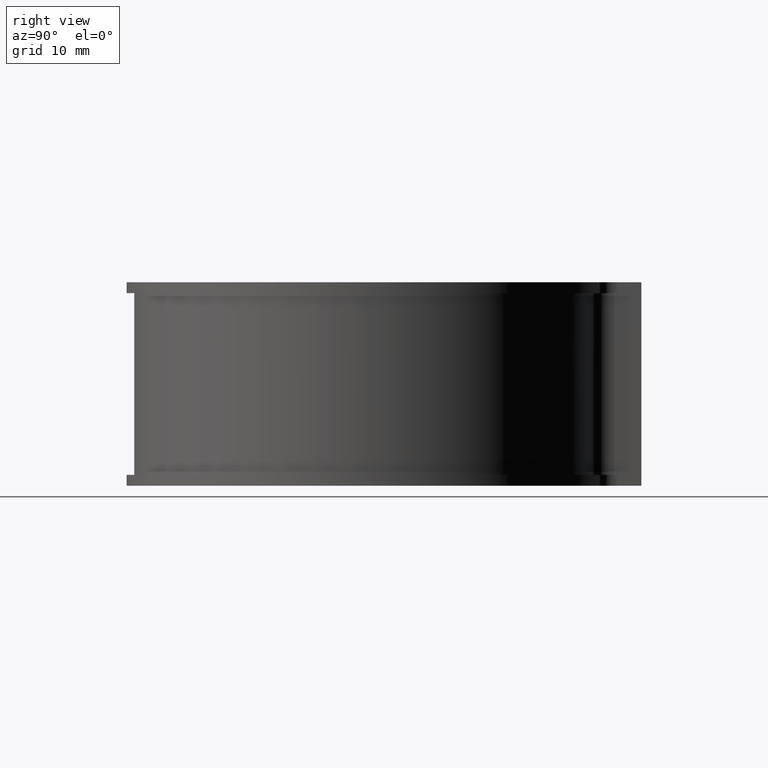
[diagram: clean part render]
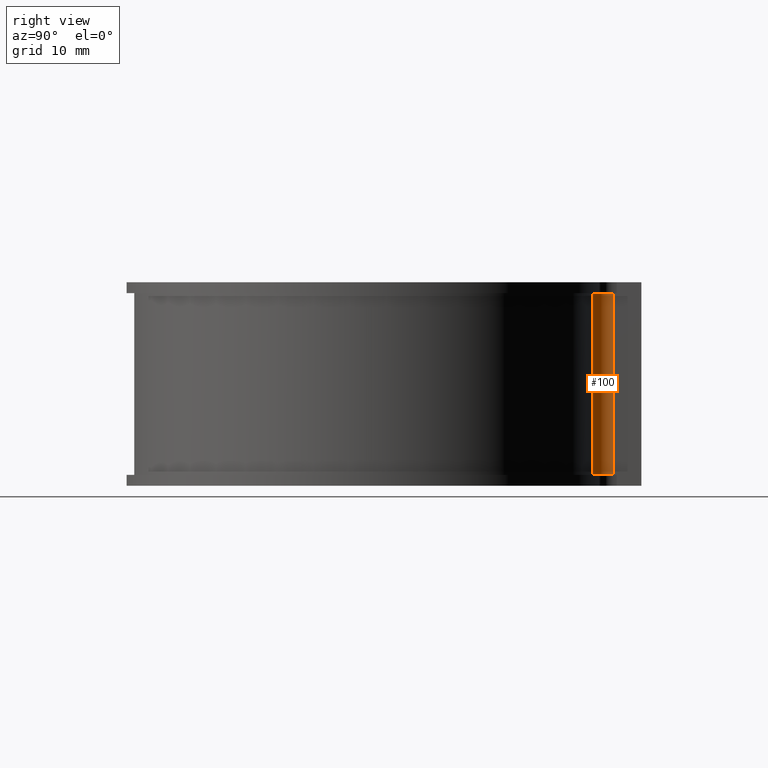
[diagram: same view with one face highlighted and labeled with its STEP entity id]
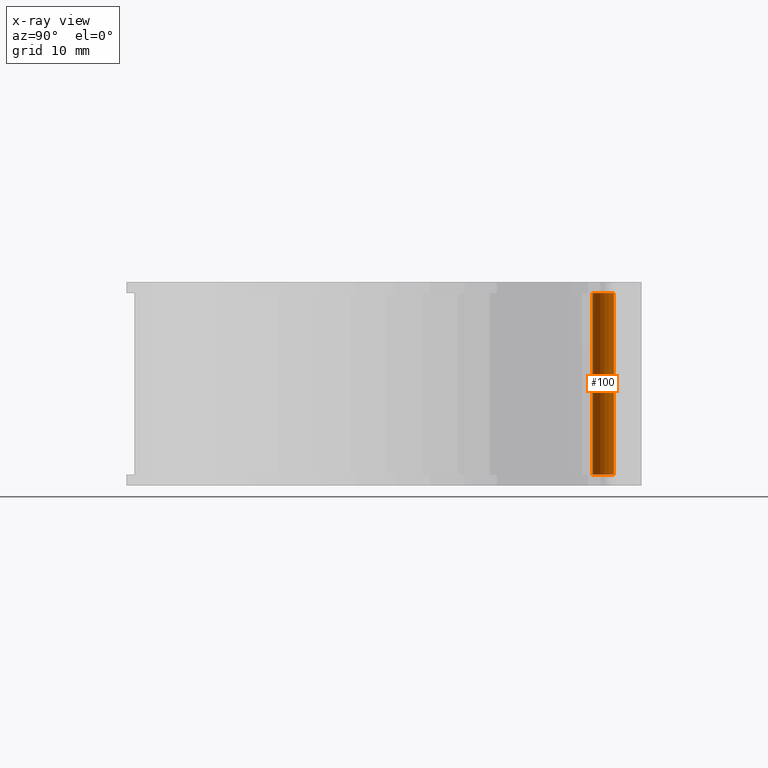
[diagram: x-ray of the same camera — body ghosted, the highlighted face saturated]
A machine part, right view. The second image highlights one B-rep face of the part: STEP entity #100.
The next image is the same camera in x-ray: the body ghosted, the highlighted face saturated — about 0% of this face is hidden behind the body in this view.
In plain terms, the highlighted cylindrical surface (edge-blend (fillet) strip) has radius 3 mm, axis along (0, 0, -1).
Its self-contained STEP definition (entity closure, byte-faithful):
#100 = ADVANCED_FACE( '', ( #152 ), #153, .F. );
#152 = FACE_OUTER_BOUND( '', #204, .T. );
#153 = CYLINDRICAL_SURFACE( '', #205, 3.00000000000000 );
#204 = EDGE_LOOP( '', ( #421, #422, #423, #424 ) );
#205 = AXIS2_PLACEMENT_3D( '', #425, #426, #427 );
#421 = ORIENTED_EDGE( '', *, *, #433, .F. );
#422 = ORIENTED_EDGE( '', *, *, #499, .F. );
#423 = ORIENTED_EDGE( '', *, *, #456, .F. );
#424 = ORIENTED_EDGE( '', *, *, #453, .F. );
#425 = CARTESIAN_POINT( '', ( 7.50000000000000, 34.1357949958691, -25.0000000000000 ) );
#426 = DIRECTION( '', ( 0.000000000000000, 0.000000000000000, -1.00000000000000 ) );
#427 = DIRECTION( '', ( 1.00000000000000, 0.000000000000000, 0.000000000000000 ) );
#433 = EDGE_CURVE( '', #508, #511, #512, .T. );
#453 = EDGE_CURVE( '', #511, #548, #549, .T. );
#456 = EDGE_CURVE( '', #548, #553, #554, .F. );
#499 = EDGE_CURVE( '', #553, #508, #619, .T. );
#508 = VERTEX_POINT( '', #632 );
#511 = VERTEX_POINT( '', #636 );
#512 = CIRCLE( '', #637, 3.00000000000000 );
#548 = VERTEX_POINT( '', #687 );
#549 = LINE( '', #688, #689 );
#553 = VERTEX_POINT( '', #694 );
#554 = CIRCLE( '', #695, 3.00000000000000 );
#619 = LINE( '', #786, #787 );
#632 = CARTESIAN_POINT( '', ( 4.50000000000000, 34.1357949958691, -25.0000000000000 ) );
#636 = CARTESIAN_POINT( '', ( 6.85622317596567, 31.2056838374254, -25.0000000000000 ) );
#637 = AXIS2_PLACEMENT_3D( '', #793, #794, #795 );
#687 = CARTESIAN_POINT( '', ( 6.85622317596567, 31.2056838374254, 0.000000000000000 ) );
#688 = CARTESIAN_POINT( '', ( 6.85622317596567, 31.2056838374254, -25.0000000000000 ) );
#689 = VECTOR( '', #825, 1000.00000000000 );
#694 = CARTESIAN_POINT( '', ( 4.50000000000000, 34.1357949958691, 0.000000000000000 ) );
#695 = AXIS2_PLACEMENT_3D( '', #830, #831, #832 );
#786 = CARTESIAN_POINT( '', ( 4.50000000000000, 34.1357949958691, -25.0000000000000 ) );
#787 = VECTOR( '', #907, 1000.00000000000 );
#793 = CARTESIAN_POINT( '', ( 7.50000000000000, 34.1357949958691, -25.0000000000000 ) );
#794 = DIRECTION( '', ( 0.000000000000000, 0.000000000000000, 1.00000000000000 ) );
#795 = DIRECTION( '', ( 1.00000000000000, 0.000000000000000, 0.000000000000000 ) );
#825 = DIRECTION( '', ( 0.000000000000000, 0.000000000000000, 1.00000000000000 ) );
#830 = CARTESIAN_POINT( '', ( 7.50000000000000, 34.1357949958691, 0.000000000000000 ) );
#831 = DIRECTION( '', ( 0.000000000000000, 0.000000000000000, 1.00000000000000 ) );
#832 = DIRECTION( '', ( 1.00000000000000, 0.000000000000000, 0.000000000000000 ) );
#907 = DIRECTION( '', ( 0.000000000000000, 0.000000000000000, -1.00000000000000 ) );